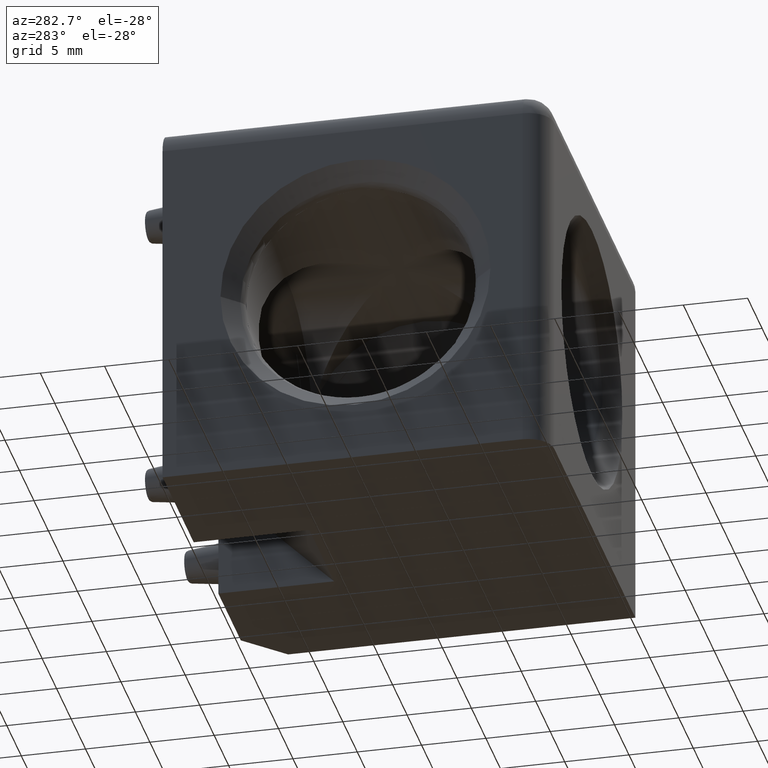
[diagram: clean part render]
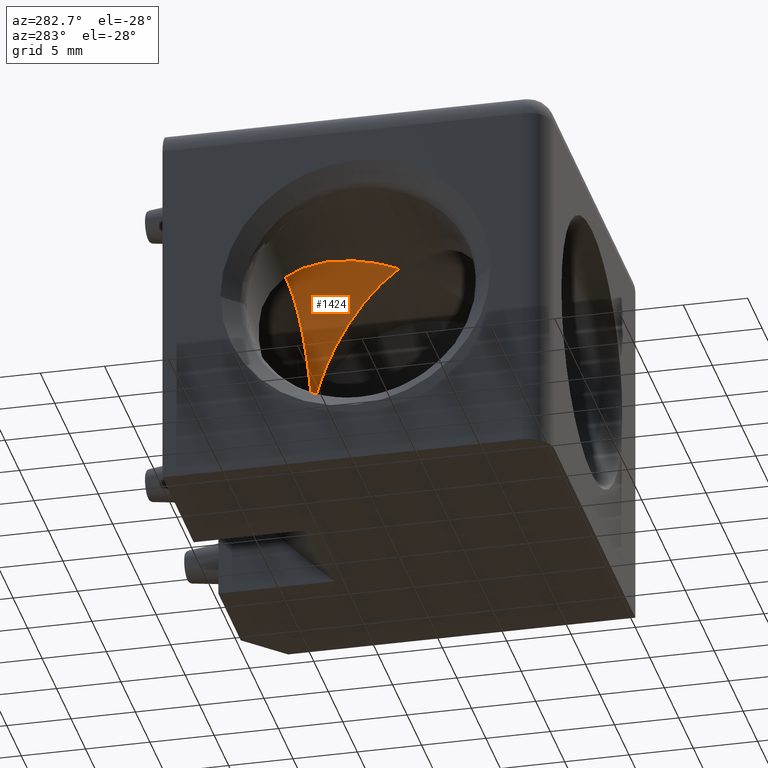
[diagram: same view with one face highlighted and labeled with its STEP entity id]
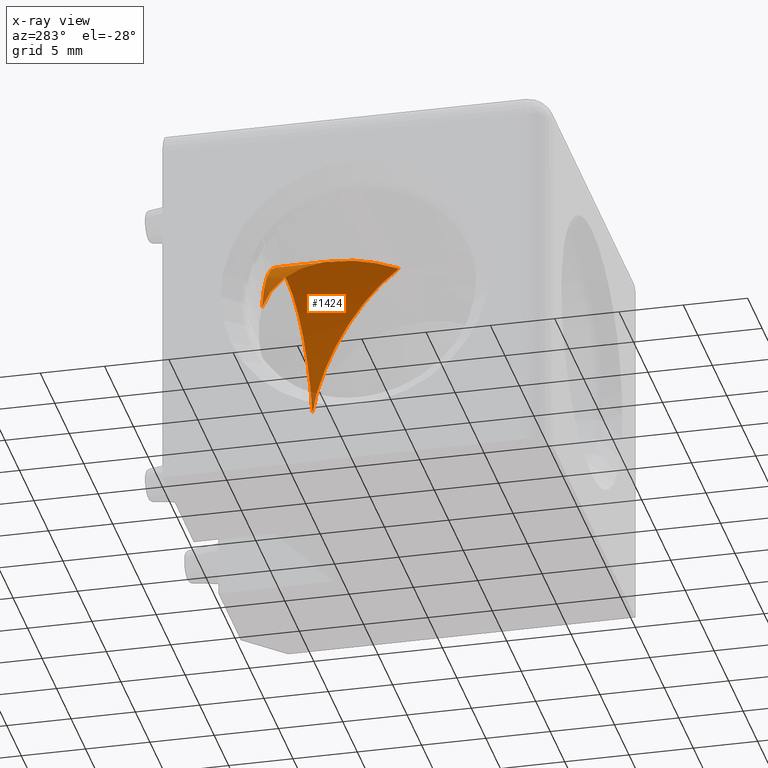
[diagram: x-ray of the same camera — body ghosted, the highlighted face saturated]
A machine part, auxiliary view. The second image highlights one B-rep face of the part: STEP entity #1424.
The next image is the same camera in x-ray: the body ghosted, the highlighted face saturated — about 1% of this face is hidden behind the body in this view.
In plain terms, the highlighted cylindrical surface (partial cylindrical patch) has radius 8.949 mm, axis along (0, -1, 0).
Its self-contained STEP definition (entity closure, byte-faithful):
#198=ELLIPSE('',#1539,12.6557971696768,8.949);
#199=ELLIPSE('',#1540,12.6557971696768,8.949);
#202=CYLINDRICAL_SURFACE('',#1538,8.949);
#267=FACE_OUTER_BOUND('',#368,.T.);
#368=EDGE_LOOP('',(#968,#969,#970));
#479=CIRCLE('',#1525,8.949);
#598=VERTEX_POINT('',#2266);
#600=VERTEX_POINT('',#2277);
#607=VERTEX_POINT('',#2330);
#732=EDGE_CURVE('',#598,#600,#479,.T.);
#748=EDGE_CURVE('',#607,#598,#198,.T.);
#749=EDGE_CURVE('',#600,#607,#199,.T.);
#968=ORIENTED_EDGE('',*,*,#748,.F.);
#969=ORIENTED_EDGE('',*,*,#749,.F.);
#970=ORIENTED_EDGE('',*,*,#732,.F.);
#1424=ADVANCED_FACE('',(#267),#202,.F.);
#1525=AXIS2_PLACEMENT_3D('',#2278,#1753,#1754);
#1538=AXIS2_PLACEMENT_3D('',#2346,#1779,#1780);
#1539=AXIS2_PLACEMENT_3D('',#2347,#1781,#1782);
#1540=AXIS2_PLACEMENT_3D('',#2348,#1783,#1784);
#1753=DIRECTION('center_axis',(0.,-1.,0.));
#1754=DIRECTION('ref_axis',(1.,0.,0.));
#1779=DIRECTION('center_axis',(0.,-1.,0.));
#1780=DIRECTION('ref_axis',(1.,0.,0.));
#1781=DIRECTION('center_axis',(-0.707106781186548,0.707106781186548,0.));
#1782=DIRECTION('ref_axis',(0.707106781186547,0.707106781186548,0.));
#1783=DIRECTION('center_axis',(0.707106781186548,0.707106781186548,0.));
#1784=DIRECTION('ref_axis',(0.707106781186547,-0.707106781186548,0.));
#2266=CARTESIAN_POINT('',(8.70000000000031,8.7,2.09633036518448));
#2277=CARTESIAN_POINT('',(-8.7,8.7,2.09633036518582));
#2278=CARTESIAN_POINT('Origin',(-4.44089209850063E-15,8.7,-5.55111512312578E-16));
#2330=CARTESIAN_POINT('',(-4.44089209850063E-15,4.44089209850063E-15,8.949));
#2346=CARTESIAN_POINT('Origin',(-4.44089209850063E-15,-3.15,-5.55111512312578E-16));
#2347=CARTESIAN_POINT('Origin',(-4.44089209850063E-15,4.44089209850063E-15,
-5.55111512312578E-16));
#2348=CARTESIAN_POINT('Origin',(-4.44089209850063E-15,4.44089209850063E-15,
-5.55111512312578E-16));